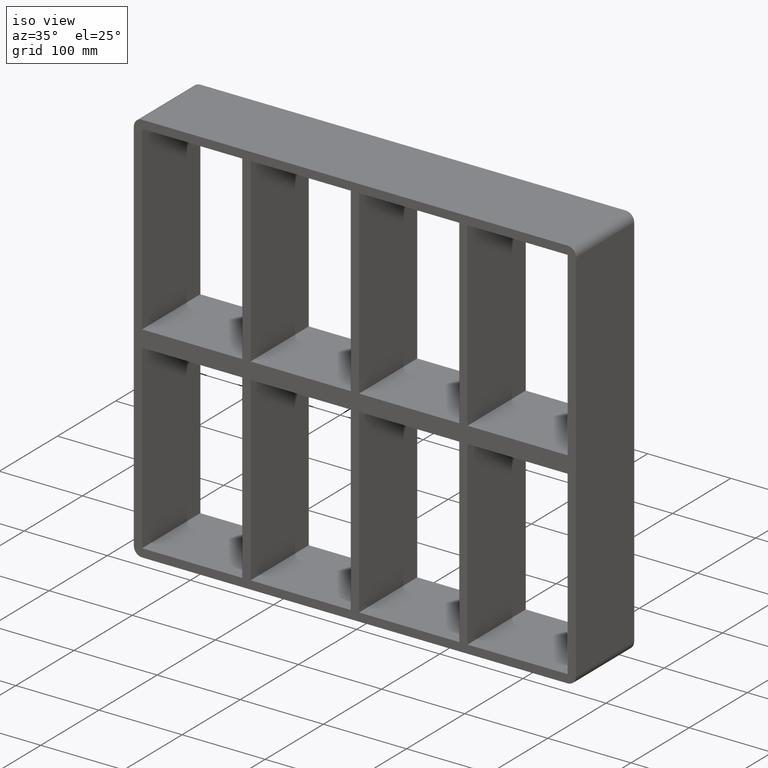
[diagram: clean part render]
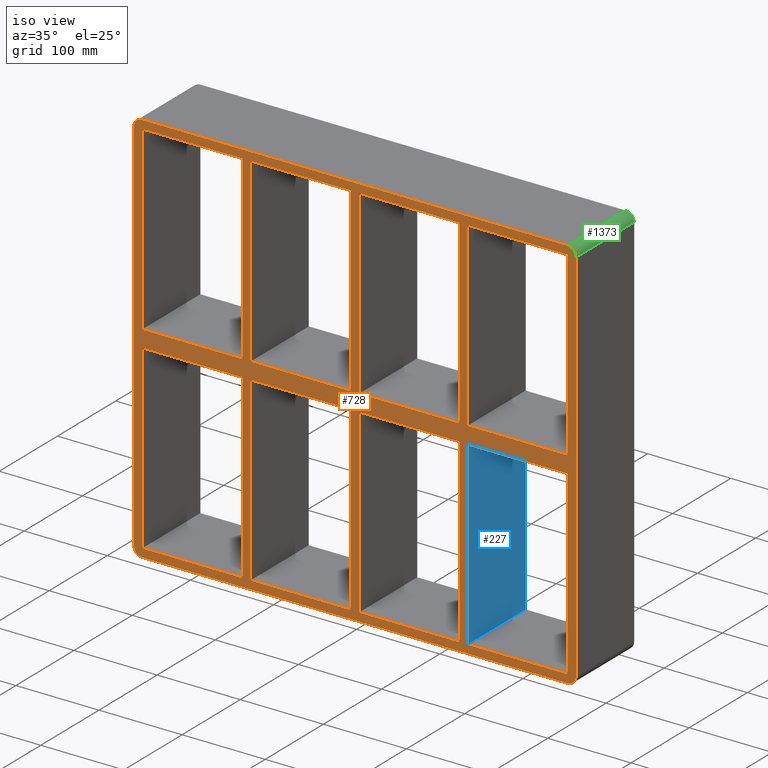
[diagram: same view with three faces highlighted in distinct colors, each labeled with its STEP entity id]
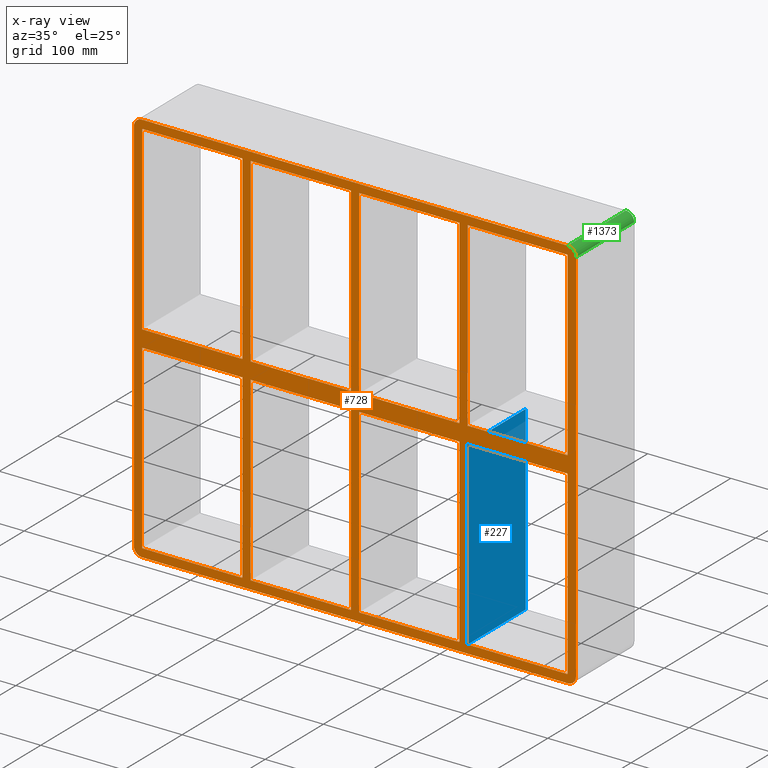
[diagram: x-ray of the same camera — body ghosted, the three highlighted faces saturated]
A machine part, iso view with three faces highlighted in distinct colors.
The next image is the same camera in x-ray (body ghosted, the three faces saturated) — at least one of them is partly hidden behind the body in this view.
Their STEP definitions:

[orange] entity #728 — the highlighted planar face has unit normal (0, 1, 0).
#73=CARTESIAN_POINT('',(125.49999999999876,-3.0,10.0));
#74=VERTEX_POINT('',#73);
#83=CARTESIAN_POINT('',(125.49999999999876,-3.0,227.99999999999997));
#84=VERTEX_POINT('',#83);
#85=CARTESIAN_POINT('',(125.49999999999876,-3.0,10.0));
#86=DIRECTION('',(0.0,0.0,1.0));
#87=VECTOR('',#86,217.99999999999997);
#88=LINE('',#85,#87);
#89=EDGE_CURVE('',#74,#84,#88,.T.);
#115=CARTESIAN_POINT('',(125.49999999999876,-3.0,-10.00000000001549));
#116=VERTEX_POINT('',#115);
#131=CARTESIAN_POINT('',(125.49999999999876,-3.0,-227.99999999999997));
#132=VERTEX_POINT('',#131);
#139=CARTESIAN_POINT('',(125.49999999999876,-3.0,-227.99999999999997));
#140=DIRECTION('',(0.0,0.0,1.0));
#141=VECTOR('',#140,217.99999999998448);
#142=LINE('',#139,#141);
#143=EDGE_CURVE('',#132,#116,#142,.T.);
#155=CARTESIAN_POINT('',(135.50000000000728,-3.0,10.0));
#156=VERTEX_POINT('',#155);
#171=CARTESIAN_POINT('',(135.50000000000728,-3.0,227.99999999999997));
#172=VERTEX_POINT('',#171);
#179=CARTESIAN_POINT('',(135.50000000000728,-3.0,227.99999999999997));
#180=DIRECTION('',(0.0,0.0,-1.0));
#181=VECTOR('',#180,217.99999999999997);
#182=LINE('',#179,#181);
#183=EDGE_CURVE('',#172,#156,#182,.T.);
#193=CARTESIAN_POINT('',(135.50000000000728,-3.0,-10.00000000001549));
#194=VERTEX_POINT('',#193);
#203=CARTESIAN_POINT('',(135.50000000000728,-3.0,-227.99999999997453));
#204=VERTEX_POINT('',#203);
#205=CARTESIAN_POINT('',(135.50000000000728,-3.0,-10.00000000001549));
#206=DIRECTION('',(0.0,0.0,-1.0));
#207=VECTOR('',#206,217.99999999995907);
#208=LINE('',#205,#207);
#209=EDGE_CURVE('',#194,#204,#208,.T.);
#233=CARTESIAN_POINT('',(-5.000000000001243,-3.0,10.0));
#234=VERTEX_POINT('',#233);
#243=CARTESIAN_POINT('',(-5.000000000001243,-3.0,227.99999999999997));
#244=VERTEX_POINT('',#243);
#245=CARTESIAN_POINT('',(-5.000000000001243,-3.0,10.0));
#246=DIRECTION('',(0.0,0.0,1.0));
#247=VECTOR('',#246,217.99999999999997);
#248=LINE('',#245,#247);
#249=EDGE_CURVE('',#234,#244,#248,.T.);
#275=CARTESIAN_POINT('',(-5.000000000001243,-3.0,-10.000000000015561));
#276=VERTEX_POINT('',#275);
#291=CARTESIAN_POINT('',(-5.000000000001243,-3.0,-227.99999999999997));
#292=VERTEX_POINT('',#291);
#299=CARTESIAN_POINT('',(-5.000000000001243,-3.0,-227.99999999999997));
#300=DIRECTION('',(0.0,0.0,1.0));
#301=VECTOR('',#300,217.99999999998442);
#302=LINE('',#299,#301);
#303=EDGE_CURVE('',#292,#276,#302,.T.);
#315=CARTESIAN_POINT('',(5.000000000007283,-3.0,10.0));
#316=VERTEX_POINT('',#315);
#331=CARTESIAN_POINT('',(5.000000000007283,-3.0,227.99999999999997));
#332=VERTEX_POINT('',#331);
#339=CARTESIAN_POINT('',(5.000000000007283,-3.0,227.99999999999997));
#340=DIRECTION('',(0.0,0.0,-1.0));
#341=VECTOR('',#340,217.99999999999997);
#342=LINE('',#339,#341);
#343=EDGE_CURVE('',#332,#316,#342,.T.);
#353=CARTESIAN_POINT('',(5.000000000007283,-3.0,-10.000000000015525));
#354=VERTEX_POINT('',#353);
#363=CARTESIAN_POINT('',(5.000000000007283,-3.0,-227.99999999997453));
#364=VERTEX_POINT('',#363);
#365=CARTESIAN_POINT('',(5.000000000007283,-3.0,-10.000000000015518));
#366=DIRECTION('',(0.0,0.0,-1.0));
#367=VECTOR('',#366,217.99999999995904);
#368=LINE('',#365,#367);
#369=EDGE_CURVE('',#354,#364,#368,.T.);
#402=CARTESIAN_POINT('',(-125.49999999999272,-3.0,-227.99999999997453));
#403=VERTEX_POINT('',#402);
#410=CARTESIAN_POINT('',(-5.000000000001251,-3.0,-227.99999999999997));
#411=DIRECTION('',(-1.0,0.0,0.0));
#412=VECTOR('',#411,120.49999999999147);
#413=LINE('',#410,#412);
#414=EDGE_CURVE('',#292,#403,#413,.T.);
#432=CARTESIAN_POINT('',(125.49999999999875,-3.0,-227.99999999999997));
#433=DIRECTION('',(-1.0,0.0,0.0));
#434=VECTOR('',#433,120.49999999999147);
#435=LINE('',#432,#434);
#436=EDGE_CURVE('',#132,#364,#435,.T.);
#447=CARTESIAN_POINT('',(256.0,-3.0,-227.99999999999997));
#448=VERTEX_POINT('',#447);
#449=CARTESIAN_POINT('',(256.0,-3.0,-227.99999999999997));
#450=DIRECTION('',(-1.0,0.0,0.0));
#451=VECTOR('',#450,120.49999999999272);
#452=LINE('',#449,#451);
#453=EDGE_CURVE('',#448,#204,#452,.T.);
#472=CARTESIAN_POINT('',(0.0,-3.0,0.0));
#473=DIRECTION('',(0.0,1.0,0.0));
#474=DIRECTION('',(0.0,0.0,1.0));
#475=AXIS2_PLACEMENT_3D('',#472,#473,#474);
#476=PLANE('',#475);
#477=CARTESIAN_POINT('',(-256.0,-3.0,-238.0));
#478=VERTEX_POINT('',#477);
#479=CARTESIAN_POINT('',(-266.0,-3.0,-228.0));
#480=VERTEX_POINT('',#479);
#481=CARTESIAN_POINT('',(-256.0,-3.0,-228.0));
#482=DIRECTION('',(0.0,1.0,0.0));
#483=DIRECTION('',(-0.707106781186547,0.0,-0.707106781186547));
#484=AXIS2_PLACEMENT_3D('',#481,#482,#483);
#485=CIRCLE('',#484,9.999999999999998);
#486=EDGE_CURVE('',#478,#480,#485,.T.);
#487=ORIENTED_EDGE('',*,*,#486,.F.);
#488=CARTESIAN_POINT('',(256.0,-3.0,-238.0));
#489=VERTEX_POINT('',#488);
#490=CARTESIAN_POINT('',(-256.0,-3.0,-238.0));
#491=DIRECTION('',(1.0,0.0,0.0));
#492=VECTOR('',#491,512.0);
#493=LINE('',#490,#492);
#494=EDGE_CURVE('',#478,#489,#493,.T.);
#495=ORIENTED_EDGE('',*,*,#494,.T.);
#496=CARTESIAN_POINT('',(266.0,-3.0,-228.0));
#497=VERTEX_POINT('',#496);
#498=CARTESIAN_POINT('',(256.0,-3.0,-228.0));
#499=DIRECTION('',(0.0,1.0,0.0));
#500=DIRECTION('',(0.707106781186547,0.0,-0.707106781186547));
#501=AXIS2_PLACEMENT_3D('',#498,#499,#500);
#502=CIRCLE('',#501,9.999999999999998);
#503=EDGE_CURVE('',#497,#489,#502,.T.);
#504=ORIENTED_EDGE('',*,*,#503,.F.);
#505=CARTESIAN_POINT('',(266.0,-3.0,228.0));
#506=VERTEX_POINT('',#505);
#507=CARTESIAN_POINT('',(266.0,-3.0,-228.0));
#508=DIRECTION('',(0.0,0.0,1.0));
#509=VECTOR('',#508,456.0);
#510=LINE('',#507,#509);
#511=EDGE_CURVE('',#497,#506,#510,.T.);
#512=ORIENTED_EDGE('',*,*,#511,.T.);
#513=CARTESIAN_POINT('',(256.0,-3.0,238.0));
#514=VERTEX_POINT('',#513);
#515=CARTESIAN_POINT('',(256.0,-3.0,228.0));
#516=DIRECTION('',(0.0,1.0,0.0));
#517=DIRECTION('',(0.707106781186547,0.0,0.707106781186547));
#518=AXIS2_PLACEMENT_3D('',#515,#516,#517);
#519=CIRCLE('',#518,9.999999999999998);
#520=EDGE_CURVE('',#514,#506,#519,.T.);
#521=ORIENTED_EDGE('',*,*,#520,.F.);
#522=CARTESIAN_POINT('',(-256.0,-3.0,238.0));
#523=VERTEX_POINT('',#522);
#524=CARTESIAN_POINT('',(256.0,-3.0,238.0));
#525=DIRECTION('',(-1.0,0.0,0.0));
#526=VECTOR('',#525,512.0);
#527=LINE('',#524,#526);
#528=EDGE_CURVE('',#514,#523,#527,.T.);
#529=ORIENTED_EDGE('',*,*,#528,.T.);
#530=CARTESIAN_POINT('',(-266.0,-3.0,228.0));
#531=VERTEX_POINT('',#530);
#532=CARTESIAN_POINT('',(-256.0,-3.0,228.0));
#533=DIRECTION('',(0.0,1.0,0.0));
#534=DIRECTION('',(-0.707106781186547,0.0,0.707106781186547));
#535=AXIS2_PLACEMENT_3D('',#532,#533,#534);
#536=CIRCLE('',#535,9.999999999999998);
#537=EDGE_CURVE('',#531,#523,#536,.T.);
#538=ORIENTED_EDGE('',*,*,#537,.F.);
#539=CARTESIAN_POINT('',(-266.0,-3.0,228.0));
#540=DIRECTION('',(0.0,0.0,-1.0));
#541=VECTOR('',#540,456.0);
#542=LINE('',#539,#541);
#543=EDGE_CURVE('',#531,#480,#542,.T.);
#544=ORIENTED_EDGE('',*,*,#543,.T.);
#545=EDGE_LOOP('',(#487,#495,#504,#512,#521,#529,#538,#544));
#546=FACE_OUTER_BOUND('',#545,.T.);
#547=ORIENTED_EDGE('',*,*,#436,.T.);
#548=ORIENTED_EDGE('',*,*,#369,.F.);
#549=CARTESIAN_POINT('',(125.49999999999875,-3.0,-10.000000000015499));
#550=DIRECTION('',(-1.0,0.0,0.0));
#551=VECTOR('',#550,120.49999999999147);
#552=LINE('',#549,#551);
#553=EDGE_CURVE('',#116,#354,#552,.T.);
#554=ORIENTED_EDGE('',*,*,#553,.F.);
#555=ORIENTED_EDGE('',*,*,#143,.F.);
#556=EDGE_LOOP('',(#547,#548,#554,#555));
#557=FACE_BOUND('',#556,.T.);
#558=CARTESIAN_POINT('',(5.000000000007276,-3.0,10.0));
#559=DIRECTION('',(1.0,0.0,0.0));
#560=VECTOR('',#559,120.49999999999147);
#561=LINE('',#558,#560);
#562=EDGE_CURVE('',#316,#74,#561,.T.);
#563=ORIENTED_EDGE('',*,*,#562,.F.);
#564=ORIENTED_EDGE('',*,*,#343,.F.);
#565=CARTESIAN_POINT('',(5.000000000007276,-3.0,228.0));
#566=DIRECTION('',(1.0,0.0,0.0));
#567=VECTOR('',#566,120.4999999999915);
#568=LINE('',#565,#567);
#569=EDGE_CURVE('',#332,#84,#568,.T.);
#570=ORIENTED_EDGE('',*,*,#569,.T.);
#571=ORIENTED_EDGE('',*,*,#89,.F.);
#572=EDGE_LOOP('',(#563,#564,#570,#571));
#573=FACE_BOUND('',#572,.T.);
#574=ORIENTED_EDGE('',*,*,#414,.T.);
#575=CARTESIAN_POINT('',(-125.49999999999272,-3.0,-10.000000000015586));
#576=VERTEX_POINT('',#575);
#577=CARTESIAN_POINT('',(-125.49999999999272,-3.0,-10.000000000015604));
#578=DIRECTION('',(0.0,0.0,-1.0));
#579=VECTOR('',#578,217.99999999995896);
#580=LINE('',#577,#579);
#581=EDGE_CURVE('',#576,#403,#580,.T.);
#582=ORIENTED_EDGE('',*,*,#581,.F.);
#583=CARTESIAN_POINT('',(-5.000000000001251,-3.0,-10.000000000015545));
#584=DIRECTION('',(-1.0,0.0,0.0));
#585=VECTOR('',#584,120.49999999999147);
#586=LINE('',#583,#585);
#587=EDGE_CURVE('',#276,#576,#586,.T.);
#588=ORIENTED_EDGE('',*,*,#587,.F.);
#589=ORIENTED_EDGE('',*,*,#303,.F.);
#590=EDGE_LOOP('',(#574,#582,#588,#589));
#591=FACE_BOUND('',#590,.T.);
#592=CARTESIAN_POINT('',(-125.49999999999272,-3.0,10.0));
#593=VERTEX_POINT('',#592);
#594=CARTESIAN_POINT('',(-125.49999999999272,-3.0,10.0));
#595=DIRECTION('',(1.0,0.0,0.0));
#596=VECTOR('',#595,120.49999999999147);
#597=LINE('',#594,#596);
#598=EDGE_CURVE('',#593,#234,#597,.T.);
#599=ORIENTED_EDGE('',*,*,#598,.F.);
#600=CARTESIAN_POINT('',(-125.49999999999272,-3.0,227.99999999999997));
#601=VERTEX_POINT('',#600);
#602=CARTESIAN_POINT('',(-125.49999999999272,-3.0,227.99999999999997));
#603=DIRECTION('',(0.0,0.0,-1.0));
#604=VECTOR('',#603,217.99999999999997);
#605=LINE('',#602,#604);
#606=EDGE_CURVE('',#601,#593,#605,.T.);
#607=ORIENTED_EDGE('',*,*,#606,.F.);
#608=CARTESIAN_POINT('',(-125.49999999999272,-3.0,228.0));
#609=DIRECTION('',(1.0,0.0,0.0));
#610=VECTOR('',#609,120.49999999999149);
#611=LINE('',#608,#610);
#612=EDGE_CURVE('',#601,#244,#611,.T.);
#613=ORIENTED_EDGE('',*,*,#612,.T.);
#614=ORIENTED_EDGE('',*,*,#249,.F.);
#615=EDGE_LOOP('',(#599,#607,#613,#614));
#616=FACE_BOUND('',#615,.T.);
#617=ORIENTED_EDGE('',*,*,#183,.F.);
#618=CARTESIAN_POINT('',(256.0,-3.0,227.99999999999997));
#619=VERTEX_POINT('',#618);
#620=CARTESIAN_POINT('',(135.50000000000728,-3.0,228.0));
#621=DIRECTION('',(1.0,0.0,0.0));
#622=VECTOR('',#621,120.49999999999278);
#623=LINE('',#620,#622);
#624=EDGE_CURVE('',#172,#619,#623,.T.);
#625=ORIENTED_EDGE('',*,*,#624,.T.);
#626=CARTESIAN_POINT('',(255.99999999999994,-3.0,10.0));
#627=VERTEX_POINT('',#626);
#628=CARTESIAN_POINT('',(256.0,-3.0,227.99999999999997));
#629=DIRECTION('',(0.0,0.0,-1.0));
#630=VECTOR('',#629,217.99999999999997);
#631=LINE('',#628,#630);
#632=EDGE_CURVE('',#619,#627,#631,.T.);
#633=ORIENTED_EDGE('',*,*,#632,.T.);
#634=CARTESIAN_POINT('',(135.50000000000728,-3.0,10.0));
#635=DIRECTION('',(1.0,0.0,0.0));
#636=VECTOR('',#635,120.49999999999267);
#637=LINE('',#634,#636);
#638=EDGE_CURVE('',#156,#627,#637,.T.);
#639=ORIENTED_EDGE('',*,*,#638,.F.);
#640=EDGE_LOOP('',(#617,#625,#633,#639));
#641=FACE_BOUND('',#640,.T.);
#642=ORIENTED_EDGE('',*,*,#209,.F.);
#643=CARTESIAN_POINT('',(256.00000000000364,-3.0,-10.000000000015453));
#644=VERTEX_POINT('',#643);
#645=CARTESIAN_POINT('',(256.00000000000364,-3.0,-10.000000000015453));
#646=DIRECTION('',(-1.0,0.0,0.0));
#647=VECTOR('',#646,120.49999999999636);
#648=LINE('',#645,#647);
#649=EDGE_CURVE('',#644,#194,#648,.T.);
#650=ORIENTED_EDGE('',*,*,#649,.F.);
#651=CARTESIAN_POINT('',(256.0,-3.0,-10.000000000015461));
#652=DIRECTION('',(0.0,0.0,-1.0));
#653=VECTOR('',#652,217.99999999998448);
#654=LINE('',#651,#653);
#655=EDGE_CURVE('',#644,#448,#654,.T.);
#656=ORIENTED_EDGE('',*,*,#655,.T.);
#657=ORIENTED_EDGE('',*,*,#453,.T.);
#658=EDGE_LOOP('',(#642,#650,#656,#657));
#659=FACE_BOUND('',#658,.T.);
#660=CARTESIAN_POINT('',(-255.99999999999966,-3.0,10.0));
#661=VERTEX_POINT('',#660);
#662=CARTESIAN_POINT('',(-256.0,-3.0,227.99999999999997));
#663=VERTEX_POINT('',#662);
#664=CARTESIAN_POINT('',(-256.0,-3.0,10.0));
#665=DIRECTION('',(0.0,0.0,1.0));
#666=VECTOR('',#665,217.99999999999994);
#667=LINE('',#664,#666);
#668=EDGE_CURVE('',#661,#663,#667,.T.);
#669=ORIENTED_EDGE('',*,*,#668,.T.);
#670=CARTESIAN_POINT('',(-135.50000000000125,-3.0,227.99999999999997));
#671=VERTEX_POINT('',#670);
#672=CARTESIAN_POINT('',(-256.0,-3.0,228.0));
#673=DIRECTION('',(1.0,0.0,0.0));
#674=VECTOR('',#673,120.49999999999875);
#675=LINE('',#672,#674);
#676=EDGE_CURVE('',#663,#671,#675,.T.);
#677=ORIENTED_EDGE('',*,*,#676,.T.);
#678=CARTESIAN_POINT('',(-135.50000000000125,-3.0,10.0));
#679=VERTEX_POINT('',#678);
#680=CARTESIAN_POINT('',(-135.50000000000125,-3.0,10.0));
#681=DIRECTION('',(0.0,0.0,1.0));
#682=VECTOR('',#681,217.99999999999997);
#683=LINE('',#680,#682);
#684=EDGE_CURVE('',#679,#671,#683,.T.);
#685=ORIENTED_EDGE('',*,*,#684,.F.);
#686=CARTESIAN_POINT('',(-255.99999999999966,-3.0,10.0));
#687=DIRECTION('',(1.0,0.0,0.0));
#688=VECTOR('',#687,120.49999999999841);
#689=LINE('',#686,#688);
#690=EDGE_CURVE('',#661,#679,#689,.T.);
#691=ORIENTED_EDGE('',*,*,#690,.F.);
#692=EDGE_LOOP('',(#669,#677,#685,#691));
#693=FACE_BOUND('',#692,.T.);
#694=CARTESIAN_POINT('',(-135.50000000000125,-3.0,-10.000000000015589));
#695=VERTEX_POINT('',#694);
#696=CARTESIAN_POINT('',(-255.99999999999966,-3.0,-10.000000000015632));
#697=VERTEX_POINT('',#696);
#698=CARTESIAN_POINT('',(-135.50000000000125,-3.0,-10.000000000015589));
#699=DIRECTION('',(-1.0,0.0,0.0));
#700=VECTOR('',#699,120.49999999999841);
#701=LINE('',#698,#700);
#702=EDGE_CURVE('',#695,#697,#701,.T.);
#703=ORIENTED_EDGE('',*,*,#702,.F.);
#704=CARTESIAN_POINT('',(-135.50000000000125,-3.0,-227.99999999999997));
#705=VERTEX_POINT('',#704);
#706=CARTESIAN_POINT('',(-135.50000000000125,-3.0,-227.99999999999997));
#707=DIRECTION('',(0.0,0.0,1.0));
#708=VECTOR('',#707,217.99999999998437);
#709=LINE('',#706,#708);
#710=EDGE_CURVE('',#705,#695,#709,.T.);
#711=ORIENTED_EDGE('',*,*,#710,.F.);
#712=CARTESIAN_POINT('',(-256.0,-3.0,-227.99999999999997));
#713=VERTEX_POINT('',#712);
#714=CARTESIAN_POINT('',(-135.50000000000125,-3.0,-227.99999999999997));
#715=DIRECTION('',(-1.0,0.0,0.0));
#716=VECTOR('',#715,120.49999999999881);
#717=LINE('',#714,#716);
#718=EDGE_CURVE('',#705,#713,#717,.T.);
#719=ORIENTED_EDGE('',*,*,#718,.T.);
#720=CARTESIAN_POINT('',(-256.0,-3.0,-227.99999999999997));
#721=DIRECTION('',(0.0,0.0,1.0));
#722=VECTOR('',#721,217.99999999998434);
#723=LINE('',#720,#722);
#724=EDGE_CURVE('',#713,#697,#723,.T.);
#725=ORIENTED_EDGE('',*,*,#724,.T.);
#726=EDGE_LOOP('',(#703,#711,#719,#725));
#727=FACE_BOUND('',#726,.T.);
#728=ADVANCED_FACE('',(#546,#557,#573,#591,#616,#641,#659,#693,#727),#476,.F.);

[blue] entity #227 — the highlighted planar face has unit normal (1, 0, 0).
#188=CARTESIAN_POINT('',(135.50000000000728,-3.0,227.99999999999997));
#189=DIRECTION('',(1.0,0.0,0.0));
#190=DIRECTION('',(0.0,0.0,-1.0));
#191=AXIS2_PLACEMENT_3D('',#188,#189,#190);
#192=PLANE('',#191);
#193=CARTESIAN_POINT('',(135.50000000000728,-3.0,-10.00000000001549));
#194=VERTEX_POINT('',#193);
#195=CARTESIAN_POINT('',(135.50000000000728,97.0,-10.00000000001549));
#196=VERTEX_POINT('',#195);
#197=CARTESIAN_POINT('',(135.50000000000728,-3.0,-10.00000000001549));
#198=DIRECTION('',(0.0,1.0,0.0));
#199=VECTOR('',#198,100.0);
#200=LINE('',#197,#199);
#201=EDGE_CURVE('',#194,#196,#200,.T.);
#202=ORIENTED_EDGE('',*,*,#201,.F.);
#203=CARTESIAN_POINT('',(135.50000000000728,-3.0,-227.99999999997453));
#204=VERTEX_POINT('',#203);
#205=CARTESIAN_POINT('',(135.50000000000728,-3.0,-10.00000000001549));
#206=DIRECTION('',(0.0,0.0,-1.0));
#207=VECTOR('',#206,217.99999999995907);
#208=LINE('',#205,#207);
#209=EDGE_CURVE('',#194,#204,#208,.T.);
#210=ORIENTED_EDGE('',*,*,#209,.T.);
#211=CARTESIAN_POINT('',(135.50000000000728,97.0,-227.99999999997453));
#212=VERTEX_POINT('',#211);
#213=CARTESIAN_POINT('',(135.50000000000728,97.0,-227.99999999999997));
#214=DIRECTION('',(0.0,-1.0,0.0));
#215=VECTOR('',#214,100.0);
#216=LINE('',#213,#215);
#217=EDGE_CURVE('',#212,#204,#216,.T.);
#218=ORIENTED_EDGE('',*,*,#217,.F.);
#219=CARTESIAN_POINT('',(135.50000000000728,97.0,-10.00000000001549));
#220=DIRECTION('',(0.0,0.0,-1.0));
#221=VECTOR('',#220,217.99999999995907);
#222=LINE('',#219,#221);
#223=EDGE_CURVE('',#196,#212,#222,.T.);
#224=ORIENTED_EDGE('',*,*,#223,.F.);
#225=EDGE_LOOP('',(#202,#210,#218,#224));
#226=FACE_OUTER_BOUND('',#225,.T.);
#227=ADVANCED_FACE('',(#226),#192,.T.);

[green] entity #1373 — the highlighted cylindrical surface (edge-blend (fillet) strip) has radius 10 mm, axis along (0, -1, 0).
#505=CARTESIAN_POINT('',(266.0,-3.0,228.0));
#506=VERTEX_POINT('',#505);
#513=CARTESIAN_POINT('',(256.0,-3.0,238.0));
#514=VERTEX_POINT('',#513);
#515=CARTESIAN_POINT('',(256.0,-3.0,228.0));
#516=DIRECTION('',(0.0,1.0,0.0));
#517=DIRECTION('',(0.707106781186547,0.0,0.707106781186547));
#518=AXIS2_PLACEMENT_3D('',#515,#516,#517);
#519=CIRCLE('',#518,9.999999999999998);
#520=EDGE_CURVE('',#514,#506,#519,.T.);
#810=CARTESIAN_POINT('',(256.0,97.0,238.0));
#811=VERTEX_POINT('',#810);
#818=CARTESIAN_POINT('',(266.0,97.0,228.0));
#819=VERTEX_POINT('',#818);
#820=CARTESIAN_POINT('',(256.0,97.0,228.0));
#821=DIRECTION('',(0.0,-1.0,0.0));
#822=DIRECTION('',(0.707106781186547,0.0,0.707106781186547));
#823=AXIS2_PLACEMENT_3D('',#820,#821,#822);
#824=CIRCLE('',#823,9.999999999999998);
#825=EDGE_CURVE('',#819,#811,#824,.T.);
#1352=CARTESIAN_POINT('',(256.0,0.0,228.0));
#1353=DIRECTION('',(0.0,-1.0,0.0));
#1354=DIRECTION('',(0.707106781186547,0.0,0.707106781186547));
#1355=AXIS2_PLACEMENT_3D('',#1352,#1353,#1354);
#1356=CYLINDRICAL_SURFACE('',#1355,10.0);
#1357=ORIENTED_EDGE('',*,*,#520,.T.);
#1358=CARTESIAN_POINT('',(266.0,-3.0,228.0));
#1359=DIRECTION('',(0.0,1.0,0.0));
#1360=VECTOR('',#1359,100.0);
#1361=LINE('',#1358,#1360);
#1362=EDGE_CURVE('',#506,#819,#1361,.T.);
#1363=ORIENTED_EDGE('',*,*,#1362,.T.);
#1364=ORIENTED_EDGE('',*,*,#825,.T.);
#1365=CARTESIAN_POINT('',(256.0,97.0,238.0));
#1366=DIRECTION('',(0.0,-1.0,0.0));
#1367=VECTOR('',#1366,100.0);
#1368=LINE('',#1365,#1367);
#1369=EDGE_CURVE('',#811,#514,#1368,.T.);
#1370=ORIENTED_EDGE('',*,*,#1369,.T.);
#1371=EDGE_LOOP('',(#1357,#1363,#1364,#1370));
#1372=FACE_OUTER_BOUND('',#1371,.T.);
#1373=ADVANCED_FACE('',(#1372),#1356,.T.);